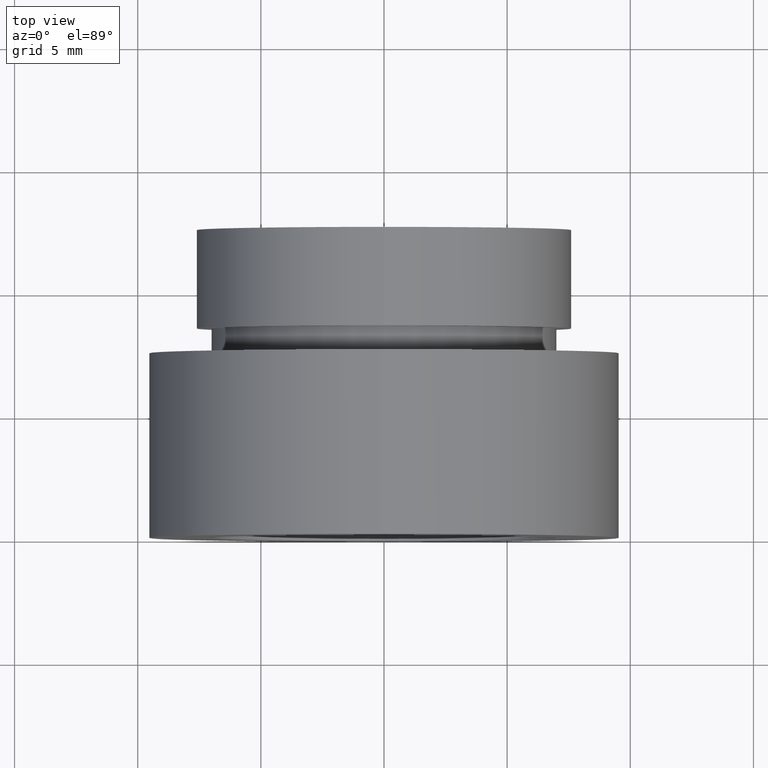
[diagram: clean part render]
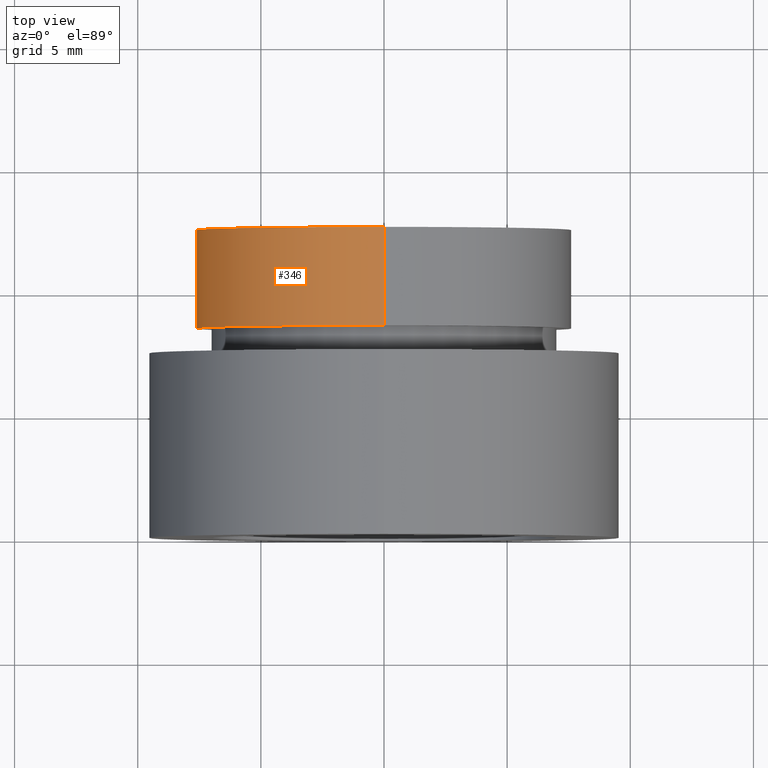
[diagram: same view with one face highlighted and labeled with its STEP entity id]
A machine part, top view. The second image highlights one B-rep face of the part: STEP entity #346.
In plain terms, the highlighted cylindrical surface (partial cylindrical patch) has radius 7.6 mm, axis along (-0, 1, -0).
Its self-contained STEP definition (entity closure, byte-faithful):
#6 = EDGE_CURVE ( 'NONE', #554, #219, #45, .T. ) ;
#11 = EDGE_LOOP ( 'NONE', ( #195, #555, #615, #594 ) ) ;
#19 = AXIS2_PLACEMENT_3D ( 'NONE', #464, #519, #174 ) ;
#24 = CARTESIAN_POINT ( 'NONE',  ( 9.307315673519905200E-016, 8.499999999999980500, -7.600000000000018300 ) ) ;
#25 = VERTEX_POINT ( 'NONE', #250 ) ;
#45 = LINE ( 'NONE', #608, #417 ) ;
#47 = VERTEX_POINT ( 'NONE', #24 ) ;
#60 = CYLINDRICAL_SURFACE ( 'NONE', #335, 7.600000000000018300 ) ;
#86 = EDGE_CURVE ( 'NONE', #47, #554, #561, .T. ) ;
#95 = CARTESIAN_POINT ( 'NONE',  ( 0.0000000000000000000, 12.49999999999998400, 7.600000000000018300 ) ) ;
#97 = DIRECTION ( 'NONE',  ( -0.0000000000000000000, 1.000000000000000000, -0.0000000000000000000 ) ) ;
#174 = DIRECTION ( 'NONE',  ( 0.0000000000000000000, 0.0000000000000000000, 1.000000000000000000 ) ) ;
#195 = ORIENTED_EDGE ( 'NONE', *, *, #496, .F. ) ;
#208 = CARTESIAN_POINT ( 'NONE',  ( 0.0000000000000000000, 8.499999999999980500, 7.600000000000018300 ) ) ;
#216 = DIRECTION ( 'NONE',  ( 0.0000000000000000000, 0.0000000000000000000, 1.000000000000000000 ) ) ;
#217 = DIRECTION ( 'NONE',  ( -0.0000000000000000000, 1.000000000000000000, -0.0000000000000000000 ) ) ;
#219 = VERTEX_POINT ( 'NONE', #95 ) ;
#230 = CARTESIAN_POINT ( 'NONE',  ( 0.0000000000000000000, 161.3761669434274500, 0.0000000000000000000 ) ) ;
#250 = CARTESIAN_POINT ( 'NONE',  ( 9.307315673519905200E-016, 12.49999999999998400, -7.600000000000018300 ) ) ;
#254 = AXIS2_PLACEMENT_3D ( 'NONE', #622, #217, #314 ) ;
#314 = DIRECTION ( 'NONE',  ( 0.0000000000000000000, 0.0000000000000000000, 1.000000000000000000 ) ) ;
#335 = AXIS2_PLACEMENT_3D ( 'NONE', #230, #486, #216 ) ;
#346 = ADVANCED_FACE ( 'NONE', ( #543 ), #60, .T. ) ;
#349 = DIRECTION ( 'NONE',  ( -0.0000000000000000000, 1.000000000000000000, -0.0000000000000000000 ) ) ;
#350 = VECTOR ( 'NONE', #97, 1000.000000000000000 ) ;
#357 = EDGE_CURVE ( 'NONE', #25, #219, #553, .T. ) ;
#363 = LINE ( 'NONE', #374, #350 ) ;
#374 = CARTESIAN_POINT ( 'NONE',  ( 9.307315673519905200E-016, 161.3761669434274500, -7.600000000000018300 ) ) ;
#417 = VECTOR ( 'NONE', #349, 1000.000000000000000 ) ;
#464 = CARTESIAN_POINT ( 'NONE',  ( 0.0000000000000000000, 12.49999999999998400, 0.0000000000000000000 ) ) ;
#486 = DIRECTION ( 'NONE',  ( -0.0000000000000000000, 1.000000000000000000, -0.0000000000000000000 ) ) ;
#496 = EDGE_CURVE ( 'NONE', #47, #25, #363, .T. ) ;
#519 = DIRECTION ( 'NONE',  ( -0.0000000000000000000, 1.000000000000000000, -0.0000000000000000000 ) ) ;
#543 = FACE_OUTER_BOUND ( 'NONE', #11, .T. ) ;
#553 = CIRCLE ( 'NONE', #19, 7.600000000000018300 ) ;
#554 = VERTEX_POINT ( 'NONE', #208 ) ;
#555 = ORIENTED_EDGE ( 'NONE', *, *, #86, .T. ) ;
#561 = CIRCLE ( 'NONE', #254, 7.600000000000018300 ) ;
#594 = ORIENTED_EDGE ( 'NONE', *, *, #357, .F. ) ;
#608 = CARTESIAN_POINT ( 'NONE',  ( 0.0000000000000000000, 161.3761669434274500, 7.600000000000018300 ) ) ;
#615 = ORIENTED_EDGE ( 'NONE', *, *, #6, .T. ) ;
#622 = CARTESIAN_POINT ( 'NONE',  ( 0.0000000000000000000, 8.499999999999980500, 0.0000000000000000000 ) ) ;